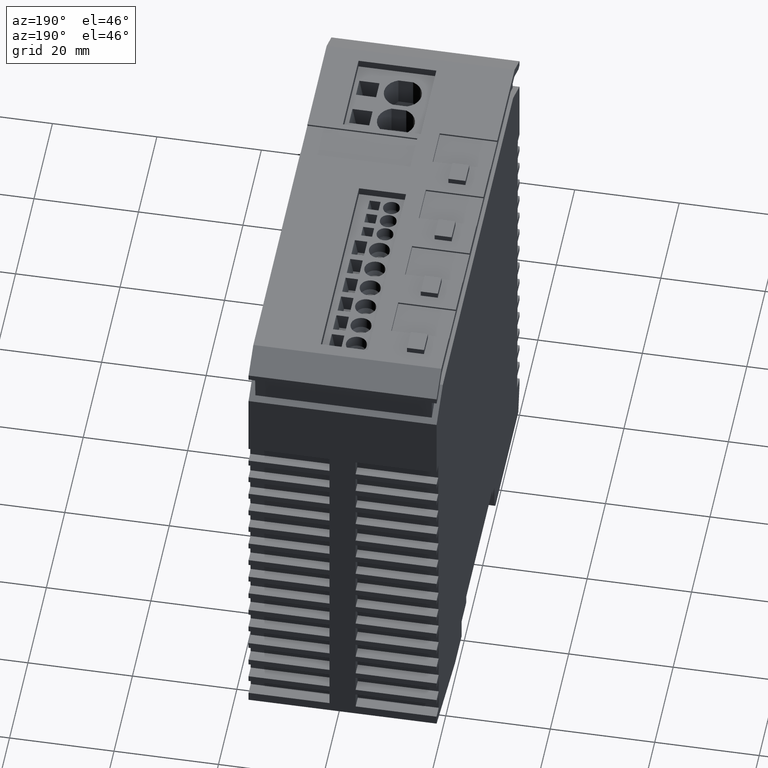
[diagram: clean part render]
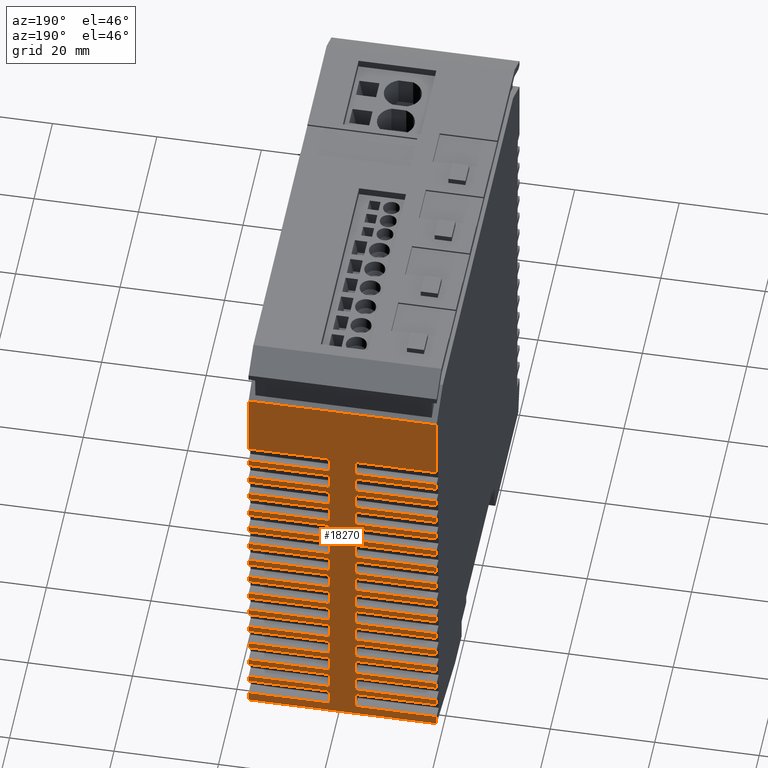
[diagram: same view with one face highlighted and labeled with its STEP entity id]
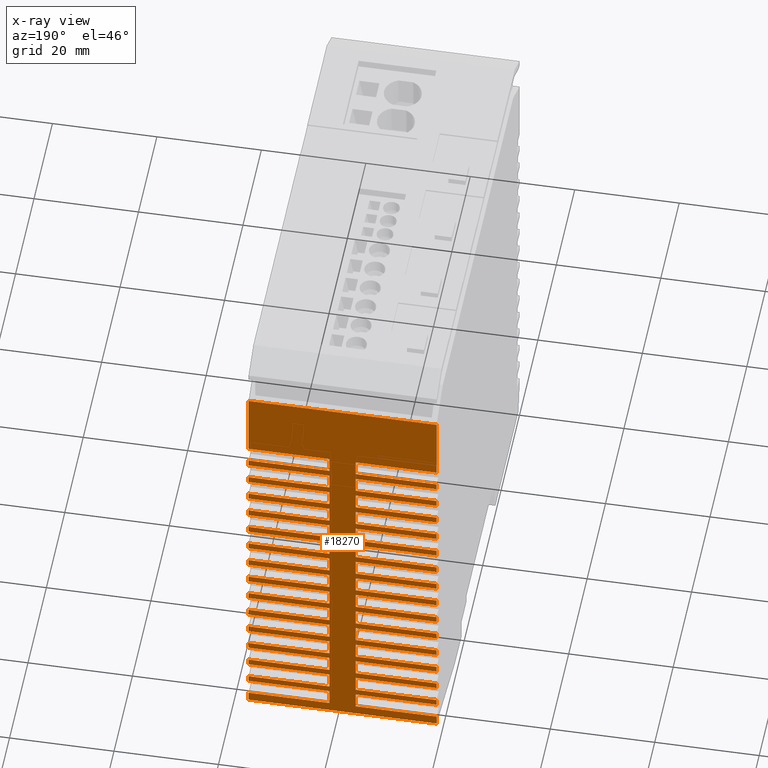
[diagram: x-ray of the same camera — body ghosted, the highlighted face saturated]
A machine part, auxiliary view. The second image highlights one B-rep face of the part: STEP entity #18270.
The next image is the same camera in x-ray: the body ghosted, the highlighted face saturated — about 0% of this face is hidden behind the body in this view.
In plain terms, the highlighted planar face has unit normal (0, 1, 0).
Its self-contained STEP definition (entity closure, byte-faithful):
#60=CARTESIAN_POINT('',(166.12362378727,69.6999999999998,
-34.799790209557));
#70=DIRECTION('',(1.10352367625519E-9,8.52434683568721E-24,1.));
#80=VECTOR('',#70,1.);
#90=LINE('',#60,#80);
#100=CARTESIAN_POINT('',(166.12362378727,69.6999999999998,
-34.799790209557));
#110=VERTEX_POINT('',#100);
#120=CARTESIAN_POINT('',(166.123623804375,69.6999999999998,
-19.299790209557));
#130=VERTEX_POINT('',#120);
#140=EDGE_CURVE('',#110,#130,#90,.T.);
#950=CARTESIAN_POINT('',(162.877748702455,69.6999999999998,
-19.2997902059751));
#960=VERTEX_POINT('',#950);
#1010=CARTESIAN_POINT('',(124.80000036879,69.6999999999998,
-19.2997901639554));
#1020=DIRECTION('',(-1.,-3.82894150652559E-24,1.10352373126048E-9));
#1030=VECTOR('',#1020,1.);
#1040=LINE('',#1010,#1030);
#1050=EDGE_CURVE('',#130,#960,#1040,.T.);
#1730=CARTESIAN_POINT('',(162.877748685351,69.6999999999998,
-34.7997902059751));
#1740=VERTEX_POINT('',#1730);
#1790=CARTESIAN_POINT('',(162.877748685351,69.6999999999998,
-34.7997902059751));
#1800=DIRECTION('',(-1.10352448830403E-9,-8.52434688499102E-24,-1.));
#1810=VECTOR('',#1800,1.);
#1820=LINE('',#1790,#1810);
#1830=EDGE_CURVE('',#960,#1740,#1820,.T.);
#2000=CARTESIAN_POINT('',(124.800000351686,69.6999999999998,
-34.7997901639554));
#2010=DIRECTION('',(-1.,-3.82894150652559E-24,1.10352373126048E-9));
#2020=VECTOR('',#2010,1.);
#2030=LINE('',#2000,#2020);
#2040=CARTESIAN_POINT('',(168.000000202668,69.6999999999998,
-34.7997902116276));
#2050=VERTEX_POINT('',#2040);
#2060=EDGE_CURVE('',#2050,#110,#2030,.T.);
#2110=CARTESIAN_POINT('',(161.621565686345,69.6999999999998,
-34.7997902045888));
#2120=VERTEX_POINT('',#2110);
#2130=EDGE_CURVE('',#1740,#2120,#2030,.T.);
#2310=CARTESIAN_POINT('',(158.379806786275,69.6999999999998,
-34.7997902010115));
#2320=VERTEX_POINT('',#2310);
#2350=CARTESIAN_POINT('',(157.119507585421,69.6999999999998,
-34.7997901996207));
#2360=VERTEX_POINT('',#2350);
#2370=EDGE_CURVE('',#2320,#2360,#2030,.T.);
#2550=CARTESIAN_POINT('',(153.8818648872,69.6999999999998,
-34.7997901960479));
#2560=VERTEX_POINT('',#2550);
#2590=CARTESIAN_POINT('',(152.617449484496,69.6999999999998,
-34.7997901946526));
#2600=VERTEX_POINT('',#2590);
#2610=EDGE_CURVE('',#2560,#2600,#2030,.T.);
#2790=CARTESIAN_POINT('',(149.383922988124,69.6999999999998,
-34.7997901910843));
#2800=VERTEX_POINT('',#2790);
#2830=CARTESIAN_POINT('',(148.115391383572,69.6999999999998,
-34.7997901896845));
#2840=VERTEX_POINT('',#2830);
#2850=EDGE_CURVE('',#2800,#2840,#2030,.T.);
#3030=CARTESIAN_POINT('',(144.885981089049,69.6999999999998,
-34.7997901861207));
#3040=VERTEX_POINT('',#3030);
#3070=CARTESIAN_POINT('',(143.613333282647,69.6999999999998,
-34.7997901847163));
#3080=VERTEX_POINT('',#3070);
#3090=EDGE_CURVE('',#3040,#3080,#2030,.T.);
#3270=CARTESIAN_POINT('',(140.388039189973,69.6999999999998,
-34.7997901811571));
#3280=VERTEX_POINT('',#3270);
#3310=CARTESIAN_POINT('',(139.111275181723,69.6999999999998,
-34.7997901797482));
#3320=VERTEX_POINT('',#3310);
#3330=EDGE_CURVE('',#3280,#3320,#2030,.T.);
#3510=CARTESIAN_POINT('',(135.890097290898,69.6999999999998,
-34.7997901761935));
#3520=VERTEX_POINT('',#3510);
#3550=CARTESIAN_POINT('',(134.608819974645,69.6999999999998,
-34.7997901747796));
#3560=VERTEX_POINT('',#3550);
#3570=EDGE_CURVE('',#3520,#3560,#2030,.T.);
#3750=CARTESIAN_POINT('',(131.392155391822,69.6999999999998,
-34.79979017123));
#3760=VERTEX_POINT('',#3750);
#3790=CARTESIAN_POINT('',(130.107158979874,69.6999999999998,
-34.7997901698119));
#3800=VERTEX_POINT('',#3790);
#3810=EDGE_CURVE('',#3760,#3800,#2030,.T.);
#3990=CARTESIAN_POINT('',(126.894213492747,69.6999999999998,
-34.7997901662664));
#4000=VERTEX_POINT('',#3990);
#4030=CARTESIAN_POINT('',(125.605100878949,69.6999999999998,
-34.7997901648438));
#4040=VERTEX_POINT('',#4030);
#4050=EDGE_CURVE('',#4000,#4040,#2030,.T.);
#4230=CARTESIAN_POINT('',(122.396271593672,69.6999999999998,
-34.7997901613028));
#4240=VERTEX_POINT('',#4230);
#4270=CARTESIAN_POINT('',(121.103042778024,69.6999999999998,
-34.7997901598757));
#4280=VERTEX_POINT('',#4270);
#4290=EDGE_CURVE('',#4240,#4280,#2030,.T.);
#4470=CARTESIAN_POINT('',(117.898329694596,69.6999999999998,
-34.7997901563392));
#4480=VERTEX_POINT('',#4470);
#4510=CARTESIAN_POINT('',(116.6009846771,69.6999999999998,
-34.7997901549076));
#4520=VERTEX_POINT('',#4510);
#4530=EDGE_CURVE('',#4480,#4520,#2030,.T.);
#4710=CARTESIAN_POINT('',(113.400387795521,69.6999999999998,
-34.7997901513756));
#4720=VERTEX_POINT('',#4710);
#4750=CARTESIAN_POINT('',(112.098926576175,69.6999999999998,
-34.7997901499394));
#4760=VERTEX_POINT('',#4750);
#4770=EDGE_CURVE('',#4720,#4760,#2030,.T.);
#4950=CARTESIAN_POINT('',(108.902445896445,69.6999999999998,
-34.799790146412));
#4960=VERTEX_POINT('',#4950);
#4990=CARTESIAN_POINT('',(107.596868475251,69.6999999999998,
-34.7997901449713));
#5000=VERTEX_POINT('',#4990);
#5010=EDGE_CURVE('',#4960,#5000,#2030,.T.);
#5190=CARTESIAN_POINT('',(104.40450399737,69.6999999999998,
-34.7997901414484));
#5200=VERTEX_POINT('',#5190);
#5230=CARTESIAN_POINT('',(103.094810374326,69.6999999999998,
-34.7997901400032));
#5240=VERTEX_POINT('',#5230);
#5250=EDGE_CURVE('',#5200,#5240,#2030,.T.);
#5430=CARTESIAN_POINT('',(99.9065620982943,69.6999999999998,
-34.7997901364849));
#5440=VERTEX_POINT('',#5430);
#5470=CARTESIAN_POINT('',(86.928203344718,69.6999999999998,
-34.7997901221629));
#5480=VERTEX_POINT('',#5470);
#5490=EDGE_CURVE('',#5440,#5480,#2030,.T.);
#10510=CARTESIAN_POINT('',(162.900000241844,69.6999999999998,
0.700209794000392));
#10520=DIRECTION('',(-3.82894151593241E-24,1.,-8.52434683146188E-24));
#10530=DIRECTION('',(-1.,-3.82894150652559E-24,1.10352373126048E-9));
#10540=AXIS2_PLACEMENT_3D('',#10510,#10520,#10530);
#10550=PLANE('',#10540);
#10560=ORIENTED_EDGE('',*,*,#5490,.T.);
#10570=CARTESIAN_POINT('',(99.9065620982943,69.6999999999998,
-34.7997901364849));
#10580=DIRECTION('',(-1.10352367625519E-9,-8.52434683568721E-24,-1.));
#10590=VECTOR('',#10580,1.);
#10600=LINE('',#10570,#10590);
#10610=CARTESIAN_POINT('',(99.9065621153989,69.6999999999998,
-19.2997901364849));
#10620=VERTEX_POINT('',#10610);
#10630=EDGE_CURVE('',#10620,#5440,#10600,.T.);
#10640=ORIENTED_EDGE('',*,*,#10630,.T.);
#10650=CARTESIAN_POINT('',(124.80000036879,69.6999999999998,
-19.2997901639554));
#10660=DIRECTION('',(-1.,-3.82894150652559E-24,1.10352373126048E-9));
#10670=VECTOR('',#10660,1.);
#10680=LINE('',#10650,#10670);
#10690=CARTESIAN_POINT('',(103.094810391431,69.6999999999998,
-19.2997901400032));
#10700=VERTEX_POINT('',#10690);
#10710=EDGE_CURVE('',#10700,#10620,#10680,.T.);
#10720=ORIENTED_EDGE('',*,*,#10710,.T.);
#10730=CARTESIAN_POINT('',(103.094810374326,69.6999999999998,
-34.7997901400032));
#10740=DIRECTION('',(1.1035238792674E-9,8.52434684185019E-24,1.));
#10750=VECTOR('',#10740,1.);
#10760=LINE('',#10730,#10750);
#10770=EDGE_CURVE('',#5240,#10700,#10760,.T.);
#10780=ORIENTED_EDGE('',*,*,#10770,.T.);
#10790=ORIENTED_EDGE('',*,*,#5250,.T.);
#10800=CARTESIAN_POINT('',(104.40450399737,69.6999999999998,
-34.7997901414484));
#10810=DIRECTION('',(-1.1035238792674E-9,-8.52434684185019E-24,-1.));
#10820=VECTOR('',#10810,1.);
#10830=LINE('',#10800,#10820);
#10840=CARTESIAN_POINT('',(104.404504014474,69.6999999999998,
-19.2997901414484));
#10850=VERTEX_POINT('',#10840);
#10860=EDGE_CURVE('',#10850,#5200,#10830,.T.);
#10870=ORIENTED_EDGE('',*,*,#10860,.T.);
#10880=CARTESIAN_POINT('',(124.80000036879,69.6999999999998,
-19.2997901639554));
#10890=DIRECTION('',(-1.,-3.82894150652559E-24,1.10352373126048E-9));
#10900=VECTOR('',#10890,1.);
#10910=LINE('',#10880,#10900);
#10920=CARTESIAN_POINT('',(107.596868492355,69.6999999999998,
-19.2997901449713));
#10930=VERTEX_POINT('',#10920);
#10940=EDGE_CURVE('',#10930,#10850,#10910,.T.);
#10950=ORIENTED_EDGE('',*,*,#10940,.T.);
#10960=CARTESIAN_POINT('',(107.596868475251,69.6999999999998,
-34.7997901449713));
#10970=DIRECTION('',(1.10352367625519E-9,8.52434683568721E-24,1.));
#10980=VECTOR('',#10970,1.);
#10990=LINE('',#10960,#10980);
#11000=EDGE_CURVE('',#5000,#10930,#10990,.T.);
#11010=ORIENTED_EDGE('',*,*,#11000,.T.);
#11020=ORIENTED_EDGE('',*,*,#5010,.T.);
#11030=CARTESIAN_POINT('',(108.902445896445,69.6999999999998,
-34.799790146412));
#11040=DIRECTION('',(-1.10352367625519E-9,-8.52434683568721E-24,-1.));
#11050=VECTOR('',#11040,1.);
#11060=LINE('',#11030,#11050);
#11070=CARTESIAN_POINT('',(108.90244591355,69.6999999999998,
-19.299790146412));
#11080=VERTEX_POINT('',#11070);
#11090=EDGE_CURVE('',#11080,#4960,#11060,.T.);
#11100=ORIENTED_EDGE('',*,*,#11090,.T.);
#11110=CARTESIAN_POINT('',(124.80000036879,69.6999999999998,
-19.2997901639554));
#11120=DIRECTION('',(-1.,-3.82894150652559E-24,1.10352373126048E-9));
#11130=VECTOR('',#11120,1.);
#11140=LINE('',#11110,#11130);
#11150=CARTESIAN_POINT('',(112.09892659328,69.6999999999998,
-19.2997901499394));
#11160=VERTEX_POINT('',#11150);
#11170=EDGE_CURVE('',#11160,#11080,#11140,.T.);
#11180=ORIENTED_EDGE('',*,*,#11170,.T.);
#11190=CARTESIAN_POINT('',(112.098926576175,69.6999999999998,
-34.7997901499394));
#11200=DIRECTION('',(1.10352367625519E-9,8.52434683568721E-24,1.));
#11210=VECTOR('',#11200,1.);
#11220=LINE('',#11190,#11210);
#11230=EDGE_CURVE('',#4760,#11160,#11220,.T.);
#11240=ORIENTED_EDGE('',*,*,#11230,.T.);
#11250=ORIENTED_EDGE('',*,*,#4770,.T.);
#11260=CARTESIAN_POINT('',(113.400387795521,69.6999999999998,
-34.7997901513756));
#11270=DIRECTION('',(-1.1035238792674E-9,-8.52434684185019E-24,-1.));
#11280=VECTOR('',#11270,1.);
#11290=LINE('',#11260,#11280);
#11300=CARTESIAN_POINT('',(113.400387812625,69.6999999999998,
-19.2997901513756));
#11310=VERTEX_POINT('',#11300);
#11320=EDGE_CURVE('',#11310,#4720,#11290,.T.);
#11330=ORIENTED_EDGE('',*,*,#11320,.T.);
#11340=CARTESIAN_POINT('',(124.80000036879,69.6999999999998,
-19.2997901639554));
#11350=DIRECTION('',(-1.,-3.82894150652559E-24,1.10352373126048E-9));
#11360=VECTOR('',#11350,1.);
#11370=LINE('',#11340,#11360);
#11380=CARTESIAN_POINT('',(116.600984694205,69.6999999999998,
-19.2997901549076));
#11390=VERTEX_POINT('',#11380);
#11400=EDGE_CURVE('',#11390,#11310,#11370,.T.);
#11410=ORIENTED_EDGE('',*,*,#11400,.T.);
#11420=CARTESIAN_POINT('',(116.6009846771,69.6999999999998,
-34.7997901549076));
#11430=DIRECTION('',(1.10352367625519E-9,8.52434683568721E-24,1.));
#11440=VECTOR('',#11430,1.);
#11450=LINE('',#11420,#11440);
#11460=EDGE_CURVE('',#4520,#11390,#11450,.T.);
#11470=ORIENTED_EDGE('',*,*,#11460,.T.);
#11480=ORIENTED_EDGE('',*,*,#4530,.T.);
#11490=CARTESIAN_POINT('',(117.898329694596,69.6999999999998,
-34.7997901563392));
#11500=DIRECTION('',(-1.10352367625519E-9,-8.52434683568721E-24,-1.));
#11510=VECTOR('',#11500,1.);
#11520=LINE('',#11490,#11510);
#11530=CARTESIAN_POINT('',(117.898329711701,69.6999999999998,
-19.2997901563392));
#11540=VERTEX_POINT('',#11530);
#11550=EDGE_CURVE('',#11540,#4480,#11520,.T.);
#11560=ORIENTED_EDGE('',*,*,#11550,.T.);
#11570=CARTESIAN_POINT('',(124.80000036879,69.6999999999998,
-19.2997901639554));
#11580=DIRECTION('',(-1.,-3.82894150652559E-24,1.10352373126048E-9));
#11590=VECTOR('',#11580,1.);
#11600=LINE('',#11570,#11590);
#11610=CARTESIAN_POINT('',(121.103042795129,69.6999999999998,
-19.2997901598757));
#11620=VERTEX_POINT('',#11610);
#11630=EDGE_CURVE('',#11620,#11540,#11600,.T.);
#11640=ORIENTED_EDGE('',*,*,#11630,.T.);
#11650=CARTESIAN_POINT('',(121.103042778024,69.6999999999998,
-34.7997901598757));
#11660=DIRECTION('',(1.10352367625519E-9,8.52434683568721E-24,1.));
#11670=VECTOR('',#11660,1.);
#11680=LINE('',#11650,#11670);
#11690=EDGE_CURVE('',#4280,#11620,#11680,.T.);
#11700=ORIENTED_EDGE('',*,*,#11690,.T.);
#11710=ORIENTED_EDGE('',*,*,#4290,.T.);
#11720=CARTESIAN_POINT('',(122.396271593672,69.6999999999998,
-34.7997901613028));
#11730=DIRECTION('',(-1.10352367625519E-9,-8.52434683568721E-24,-1.));
#11740=VECTOR('',#11730,1.);
#11750=LINE('',#11720,#11740);
#11760=CARTESIAN_POINT('',(122.396271610776,69.6999999999998,
-19.2997901613028));
#11770=VERTEX_POINT('',#11760);
#11780=EDGE_CURVE('',#11770,#4240,#11750,.T.);
#11790=ORIENTED_EDGE('',*,*,#11780,.T.);
#11800=CARTESIAN_POINT('',(124.80000036879,69.6999999999998,
-19.2997901639554));
#11810=DIRECTION('',(-1.,-3.82894150652559E-24,1.10352373126048E-9));
#11820=VECTOR('',#11810,1.);
#11830=LINE('',#11800,#11820);
#11840=CARTESIAN_POINT('',(125.605100896054,69.6999999999998,
-19.2997901648438));
#11850=VERTEX_POINT('',#11840);
#11860=EDGE_CURVE('',#11850,#11770,#11830,.T.);
#11870=ORIENTED_EDGE('',*,*,#11860,.T.);
#11880=CARTESIAN_POINT('',(125.605100878949,69.6999999999998,
-34.7997901648438));
#11890=DIRECTION('',(1.10352367625519E-9,8.52434683568721E-24,1.));
#11900=VECTOR('',#11890,1.);
#11910=LINE('',#11880,#11900);
#11920=EDGE_CURVE('',#4040,#11850,#11910,.T.);
#11930=ORIENTED_EDGE('',*,*,#11920,.T.);
#11940=ORIENTED_EDGE('',*,*,#4050,.T.);
#11950=CARTESIAN_POINT('',(126.894213492747,69.6999999999998,
-34.7997901662664));
#11960=DIRECTION('',(-1.10352367625519E-9,-8.52434683568721E-24,-1.));
#11970=VECTOR('',#11960,1.);
#11980=LINE('',#11950,#11970);
#11990=CARTESIAN_POINT('',(126.894213509852,69.6999999999998,
-19.2997901662664));
#12000=VERTEX_POINT('',#11990);
#12010=EDGE_CURVE('',#12000,#4000,#11980,.T.);
#12020=ORIENTED_EDGE('',*,*,#12010,.T.);
#12030=CARTESIAN_POINT('',(124.80000036879,69.6999999999998,
-19.2997901639554));
#12040=DIRECTION('',(-1.,-3.82894150652559E-24,1.10352373126048E-9));
#12050=VECTOR('',#12040,1.);
#12060=LINE('',#12030,#12050);
#12070=CARTESIAN_POINT('',(130.107158996978,69.6999999999998,
-19.2997901698119));
#12080=VERTEX_POINT('',#12070);
#12090=EDGE_CURVE('',#12080,#12000,#12060,.T.);
#12100=ORIENTED_EDGE('',*,*,#12090,.T.);
#12110=CARTESIAN_POINT('',(130.107158979874,69.6999999999998,
-34.7997901698119));
#12120=DIRECTION('',(1.10352367625519E-9,8.52434683568721E-24,1.));
#12130=VECTOR('',#12120,1.);
#12140=LINE('',#12110,#12130);
#12150=EDGE_CURVE('',#3800,#12080,#12140,.T.);
#12160=ORIENTED_EDGE('',*,*,#12150,.T.);
#12170=ORIENTED_EDGE('',*,*,#3810,.T.);
#12180=CARTESIAN_POINT('',(131.392155391822,69.6999999999998,
-34.79979017123));
#12190=DIRECTION('',(-1.10352327023076E-9,-8.52434683568721E-24,-1.));
#12200=VECTOR('',#12190,1.);
#12210=LINE('',#12180,#12200);
#12220=CARTESIAN_POINT('',(131.392155408927,69.6999999999998,
-19.29979017123));
#12230=VERTEX_POINT('',#12220);
#12240=EDGE_CURVE('',#12230,#3760,#12210,.T.);
#12250=ORIENTED_EDGE('',*,*,#12240,.T.);
#12260=CARTESIAN_POINT('',(124.80000036879,69.6999999999998,
-19.2997901639554));
#12270=DIRECTION('',(-1.,-3.82894150652559E-24,1.10352373126048E-9));
#12280=VECTOR('',#12270,1.);
#12290=LINE('',#12260,#12280);
#12300=CARTESIAN_POINT('',(134.60881999175,69.6999999999998,
-19.2997901747796));
#12310=VERTEX_POINT('',#12300);
#12320=EDGE_CURVE('',#12310,#12230,#12290,.T.);
#12330=ORIENTED_EDGE('',*,*,#12320,.T.);
#12340=CARTESIAN_POINT('',(134.608819974645,69.6999999999998,
-34.7997901747796));
#12350=DIRECTION('',(1.10352367625519E-9,8.52434683568721E-24,1.));
#12360=VECTOR('',#12350,1.);
#12370=LINE('',#12340,#12360);
#12380=EDGE_CURVE('',#3560,#12310,#12370,.T.);
#12390=ORIENTED_EDGE('',*,*,#12380,.T.);
#12400=ORIENTED_EDGE('',*,*,#3570,.T.);
#12410=CARTESIAN_POINT('',(135.890097290898,69.6999999999998,
-34.7997901761935));
#12420=DIRECTION('',(-1.10352408227961E-9,-8.52434684185019E-24,-1.));
#12430=VECTOR('',#12420,1.);
#12440=LINE('',#12410,#12430);
#12450=CARTESIAN_POINT('',(135.890097308003,69.6999999999998,
-19.2997901761935));
#12460=VERTEX_POINT('',#12450);
#12470=EDGE_CURVE('',#12460,#3520,#12440,.T.);
#12480=ORIENTED_EDGE('',*,*,#12470,.T.);
#12490=CARTESIAN_POINT('',(124.80000036879,69.6999999999998,
-19.2997901639554));
#12500=DIRECTION('',(-1.,-3.82894150652559E-24,1.10352373126048E-9));
#12510=VECTOR('',#12500,1.);
#12520=LINE('',#12490,#12510);
#12530=CARTESIAN_POINT('',(139.111275198827,69.6999999999998,
-19.2997901797482));
#12540=VERTEX_POINT('',#12530);
#12550=EDGE_CURVE('',#12540,#12460,#12520,.T.);
#12560=ORIENTED_EDGE('',*,*,#12550,.T.);
#12570=CARTESIAN_POINT('',(139.111275181723,69.6999999999998,
-34.7997901797482));
#12580=DIRECTION('',(1.10352367625519E-9,8.52434683568721E-24,1.));
#12590=VECTOR('',#12580,1.);
#12600=LINE('',#12570,#12590);
#12610=EDGE_CURVE('',#3320,#12540,#12600,.T.);
#12620=ORIENTED_EDGE('',*,*,#12610,.T.);
#12630=ORIENTED_EDGE('',*,*,#3330,.T.);
#12640=CARTESIAN_POINT('',(140.388039189973,69.6999999999998,
-34.7997901811571));
#12650=DIRECTION('',(-1.10352367625519E-9,-8.52434683568721E-24,-1.));
#12660=VECTOR('',#12650,1.);
#12670=LINE('',#12640,#12660);
#12680=CARTESIAN_POINT('',(140.388039207078,69.6999999999998,
-19.2997901811571));
#12690=VERTEX_POINT('',#12680);
#12700=EDGE_CURVE('',#12690,#3280,#12670,.T.);
#12710=ORIENTED_EDGE('',*,*,#12700,.T.);
#12720=CARTESIAN_POINT('',(124.80000036879,69.6999999999998,
-19.2997901639554));
#12730=DIRECTION('',(-1.,-3.82894150652559E-24,1.10352373126048E-9));
#12740=VECTOR('',#12730,1.);
#12750=LINE('',#12720,#12740);
#12760=CARTESIAN_POINT('',(143.613333299752,69.6999999999998,
-19.2997901847163));
#12770=VERTEX_POINT('',#12760);
#12780=EDGE_CURVE('',#12770,#12690,#12750,.T.);
#12790=ORIENTED_EDGE('',*,*,#12780,.T.);
#12800=CARTESIAN_POINT('',(143.613333282647,69.6999999999998,
-34.7997901847163));
#12810=DIRECTION('',(1.10352367625519E-9,8.52434683568721E-24,1.));
#12820=VECTOR('',#12810,1.);
#12830=LINE('',#12800,#12820);
#12840=EDGE_CURVE('',#3080,#12770,#12830,.T.);
#12850=ORIENTED_EDGE('',*,*,#12840,.T.);
#12860=ORIENTED_EDGE('',*,*,#3090,.T.);
#12870=CARTESIAN_POINT('',(144.885981089049,69.6999999999998,
-34.7997901861207));
#12880=DIRECTION('',(-1.10352408227961E-9,-8.52434684185019E-24,-1.));
#12890=VECTOR('',#12880,1.);
#12900=LINE('',#12870,#12890);
#12910=CARTESIAN_POINT('',(144.885981106153,69.6999999999998,
-19.2997901861207));
#12920=VERTEX_POINT('',#12910);
#12930=EDGE_CURVE('',#12920,#3040,#12900,.T.);
#12940=ORIENTED_EDGE('',*,*,#12930,.T.);
#12950=CARTESIAN_POINT('',(124.80000036879,69.6999999999998,
-19.2997901639554));
#12960=DIRECTION('',(-1.,-3.82894150652559E-24,1.10352373126048E-9));
#12970=VECTOR('',#12960,1.);
#12980=LINE('',#12950,#12970);
#12990=CARTESIAN_POINT('',(148.115391400676,69.6999999999998,
-19.2997901896845));
#13000=VERTEX_POINT('',#12990);
#13010=EDGE_CURVE('',#13000,#12920,#12980,.T.);
#13020=ORIENTED_EDGE('',*,*,#13010,.T.);
#13030=CARTESIAN_POINT('',(148.115391383572,69.6999999999998,
-34.7997901896845));
#13040=DIRECTION('',(1.10352286420634E-9,8.52434689115399E-24,1.));
#13050=VECTOR('',#13040,1.);
#13060=LINE('',#13030,#13050);
#13070=EDGE_CURVE('',#2840,#13000,#13060,.T.);
#13080=ORIENTED_EDGE('',*,*,#13070,.T.);
#13090=ORIENTED_EDGE('',*,*,#2850,.T.);
#13100=CARTESIAN_POINT('',(149.383922988124,69.6999999999998,
-34.7997901910843));
#13110=DIRECTION('',(-1.10352286420634E-9,-8.52434689115399E-24,-1.));
#13120=VECTOR('',#13110,1.);
#13130=LINE('',#13100,#13120);
#13140=CARTESIAN_POINT('',(149.383923005229,69.6999999999998,
-19.2997901910843));
#13150=VERTEX_POINT('',#13140);
#13160=EDGE_CURVE('',#13150,#2800,#13130,.T.);
#13170=ORIENTED_EDGE('',*,*,#13160,.T.);
#13180=CARTESIAN_POINT('',(124.80000036879,69.6999999999998,
-19.2997901639554));
#13190=DIRECTION('',(-1.,-3.82894150652559E-24,1.10352373126048E-9));
#13200=VECTOR('',#13190,1.);
#13210=LINE('',#13180,#13200);
#13220=CARTESIAN_POINT('',(152.617449501601,69.6999999999998,
-19.2997901946526));
#13230=VERTEX_POINT('',#13220);
#13240=EDGE_CURVE('',#13230,#13150,#13210,.T.);
#13250=ORIENTED_EDGE('',*,*,#13240,.T.);
#13260=CARTESIAN_POINT('',(152.617449484496,69.6999999999998,
-34.7997901946526));
#13270=DIRECTION('',(1.10352286420634E-9,8.52434689115399E-24,1.));
#13280=VECTOR('',#13270,1.);
#13290=LINE('',#13260,#13280);
#13300=EDGE_CURVE('',#2600,#13230,#13290,.T.);
#13310=ORIENTED_EDGE('',*,*,#13300,.T.);
#13320=ORIENTED_EDGE('',*,*,#2610,.T.);
#13330=CARTESIAN_POINT('',(153.8818648872,69.6999999999998,
-34.7997901960479));
#13340=DIRECTION('',(-1.10352286420634E-9,-8.52434689115399E-24,-1.));
#13350=VECTOR('',#13340,1.);
#13360=LINE('',#13330,#13350);
#13370=CARTESIAN_POINT('',(153.881864904304,69.6999999999998,
-19.2997901960479));
#13380=VERTEX_POINT('',#13370);
#13390=EDGE_CURVE('',#13380,#2560,#13360,.T.);
#13400=ORIENTED_EDGE('',*,*,#13390,.T.);
#13410=CARTESIAN_POINT('',(124.80000036879,69.6999999999998,
-19.2997901639554));
#13420=DIRECTION('',(-1.,-3.82894150652559E-24,1.10352373126048E-9));
#13430=VECTOR('',#13420,1.);
#13440=LINE('',#13410,#13430);
#13450=CARTESIAN_POINT('',(157.119507602525,69.6999999999998,
-19.2997901996207));
#13460=VERTEX_POINT('',#13450);
#13470=EDGE_CURVE('',#13460,#13380,#13440,.T.);
#13480=ORIENTED_EDGE('',*,*,#13470,.T.);
#13490=CARTESIAN_POINT('',(157.119507585421,69.6999999999998,
-34.7997901996207));
#13500=DIRECTION('',(1.10352367625519E-9,8.52434683568721E-24,1.));
#13510=VECTOR('',#13500,1.);
#13520=LINE('',#13490,#13510);
#13530=EDGE_CURVE('',#2360,#13460,#13520,.T.);
#13540=ORIENTED_EDGE('',*,*,#13530,.T.);
#13550=ORIENTED_EDGE('',*,*,#2370,.T.);
#13560=CARTESIAN_POINT('',(158.379806786275,69.6999999999998,
-34.7997902010115));
#13570=DIRECTION('',(-1.10352286420634E-9,-8.52434689115399E-24,-1.));
#13580=VECTOR('',#13570,1.);
#13590=LINE('',#13560,#13580);
#13600=CARTESIAN_POINT('',(158.37980680338,69.6999999999998,
-19.2997902010115));
#13610=VERTEX_POINT('',#13600);
#13620=EDGE_CURVE('',#13610,#2320,#13590,.T.);
#13630=ORIENTED_EDGE('',*,*,#13620,.T.);
#13640=CARTESIAN_POINT('',(124.80000036879,69.6999999999998,
-19.2997901639554));
#13650=DIRECTION('',(-1.,-3.82894150652559E-24,1.10352373126048E-9));
#13660=VECTOR('',#13650,1.);
#13670=LINE('',#13640,#13660);
#13680=CARTESIAN_POINT('',(161.62156570345,69.6999999999998,
-19.2997902045888));
#13690=VERTEX_POINT('',#13680);
#13700=EDGE_CURVE('',#13690,#13610,#13670,.T.);
#13710=ORIENTED_EDGE('',*,*,#13700,.T.);
#13720=CARTESIAN_POINT('',(161.621565686345,69.6999999999998,
-34.7997902045888));
#13730=DIRECTION('',(1.10352367625519E-9,8.52434683568721E-24,1.));
#13740=VECTOR('',#13730,1.);
#13750=LINE('',#13720,#13740);
#13760=EDGE_CURVE('',#2120,#13690,#13750,.T.);
#13770=ORIENTED_EDGE('',*,*,#13760,.T.);
#13780=ORIENTED_EDGE('',*,*,#2130,.T.);
#13790=ORIENTED_EDGE('',*,*,#1830,.T.);
#13800=ORIENTED_EDGE('',*,*,#1050,.T.);
#13810=ORIENTED_EDGE('',*,*,#140,.T.);
#13820=ORIENTED_EDGE('',*,*,#2060,.T.);
#13830=CARTESIAN_POINT('',(168.000000202668,69.6999999999998,
-34.7997902116276));
#13840=DIRECTION('',(1.10352367625519E-9,8.52434683568721E-24,1.));
#13850=VECTOR('',#13840,1.);
#13860=LINE('',#13830,#13850);
#13870=CARTESIAN_POINT('',(168.000000242395,69.6999999999998,
1.20020978837242));
#13880=VERTEX_POINT('',#13870);
#13890=EDGE_CURVE('',#2050,#13880,#13860,.T.);
#13900=ORIENTED_EDGE('',*,*,#13890,.F.);
#13910=CARTESIAN_POINT('',(124.800000391412,69.6999999999998,
1.20020983604464));
#13920=DIRECTION('',(1.,3.82894150652559E-24,-1.10352373126048E-9));
#13930=VECTOR('',#13920,1.);
#13940=LINE('',#13910,#13930);
#13950=CARTESIAN_POINT('',(166.123623826997,69.6999999999998,
1.20020979044305));
#13960=VERTEX_POINT('',#13950);
#13970=EDGE_CURVE('',#13960,#13880,#13940,.T.);
#13980=ORIENTED_EDGE('',*,*,#13970,.T.);
#13990=CARTESIAN_POINT('',(166.12362378727,69.6999999999998,
-34.799790209557));
#14000=DIRECTION('',(1.10352367625519E-9,8.52434683568721E-24,1.));
#14010=VECTOR('',#14000,1.);
#14020=LINE('',#13990,#14010);
#14030=CARTESIAN_POINT('',(166.123623809892,69.6999999999998,
-14.299790209557));
#14040=VERTEX_POINT('',#14030);
#14050=EDGE_CURVE('',#14040,#13960,#14020,.T.);
#14060=ORIENTED_EDGE('',*,*,#14050,.T.);
#14070=CARTESIAN_POINT('',(124.800000374308,69.6999999999998,
-14.2997901639554));
#14080=DIRECTION('',(1.,3.82894150652559E-24,-1.10352373126048E-9));
#14090=VECTOR('',#14080,1.);
#14100=LINE('',#14070,#14090);
#14110=CARTESIAN_POINT('',(162.877748707973,69.6999999999998,
-14.2997902059751));
#14120=VERTEX_POINT('',#14110);
#14130=EDGE_CURVE('',#14120,#14040,#14100,.T.);
#14140=ORIENTED_EDGE('',*,*,#14130,.T.);
#14150=CARTESIAN_POINT('',(162.877748685351,69.6999999999998,
-34.7997902059751));
#14160=DIRECTION('',(-1.10352286420634E-9,-8.52434689115399E-24,-1.));
#14170=VECTOR('',#14160,1.);
#14180=LINE('',#14150,#14170);
#14190=CARTESIAN_POINT('',(162.877748725078,69.6999999999998,
1.20020979402494));
#14200=VERTEX_POINT('',#14190);
#14210=EDGE_CURVE('',#14200,#14120,#14180,.T.);
#14220=ORIENTED_EDGE('',*,*,#14210,.T.);
#14230=CARTESIAN_POINT('',(161.621565726072,69.6999999999998,
1.20020979541117));
#14240=VERTEX_POINT('',#14230);
#14250=EDGE_CURVE('',#14240,#14200,#13940,.T.);
#14260=ORIENTED_EDGE('',*,*,#14250,.T.);
#14270=CARTESIAN_POINT('',(161.621565686345,69.6999999999998,
-34.7997902045888));
#14280=DIRECTION('',(1.10352286420634E-9,8.52434689115399E-24,1.));
#14290=VECTOR('',#14280,1.);
#14300=LINE('',#14270,#14290);
#14310=CARTESIAN_POINT('',(161.621565708968,69.6999999999998,
-14.2997902045888));
#14320=VERTEX_POINT('',#14310);
#14330=EDGE_CURVE('',#14320,#14240,#14300,.T.);
#14340=ORIENTED_EDGE('',*,*,#14330,.T.);
#14350=CARTESIAN_POINT('',(124.800000374308,69.6999999999998,
-14.2997901639554));
#14360=DIRECTION('',(1.,3.82894150652559E-24,-1.10352373126048E-9));
#14370=VECTOR('',#14360,1.);
#14380=LINE('',#14350,#14370);
#14390=CARTESIAN_POINT('',(158.379806808897,69.6999999999998,
-14.2997902010115));
#14400=VERTEX_POINT('',#14390);
#14410=EDGE_CURVE('',#14400,#14320,#14380,.T.);
#14420=ORIENTED_EDGE('',*,*,#14410,.T.);
#14430=CARTESIAN_POINT('',(158.379806786275,69.6999999999998,
-34.7997902010115));
#14440=DIRECTION('',(-1.10352367625519E-9,-8.52434683568721E-24,-1.));
#14450=VECTOR('',#14440,1.);
#14460=LINE('',#14430,#14450);
#14470=CARTESIAN_POINT('',(158.379806826002,69.6999999999998,
1.20020979898853));
#14480=VERTEX_POINT('',#14470);
#14490=EDGE_CURVE('',#14480,#14400,#14460,.T.);
#14500=ORIENTED_EDGE('',*,*,#14490,.T.);
#14510=CARTESIAN_POINT('',(157.119507625148,69.6999999999998,
1.2002098003793));
#14520=VERTEX_POINT('',#14510);
#14530=EDGE_CURVE('',#14520,#14480,#13940,.T.);
#14540=ORIENTED_EDGE('',*,*,#14530,.T.);
#14550=CARTESIAN_POINT('',(157.119507585421,69.6999999999998,
-34.7997901996207));
#14560=DIRECTION('',(1.10352286420634E-9,8.52434689115399E-24,1.));
#14570=VECTOR('',#14560,1.);
#14580=LINE('',#14550,#14570);
#14590=CARTESIAN_POINT('',(157.119507608043,69.6999999999998,
-14.2997901996207));
#14600=VERTEX_POINT('',#14590);
#14610=EDGE_CURVE('',#14600,#14520,#14580,.T.);
#14620=ORIENTED_EDGE('',*,*,#14610,.T.);
#14630=CARTESIAN_POINT('',(124.800000374308,69.6999999999998,
-14.2997901639554));
#14640=DIRECTION('',(1.,3.82894150652559E-24,-1.10352373126048E-9));
#14650=VECTOR('',#14640,1.);
#14660=LINE('',#14630,#14650);
#14670=CARTESIAN_POINT('',(153.881864909822,69.6999999999998,
-14.2997901960479));
#14680=VERTEX_POINT('',#14670);
#14690=EDGE_CURVE('',#14680,#14600,#14660,.T.);
#14700=ORIENTED_EDGE('',*,*,#14690,.T.);
#14710=CARTESIAN_POINT('',(153.8818648872,69.6999999999998,
-34.7997901960479));
#14720=DIRECTION('',(-1.10352286420634E-9,-8.52434689115399E-24,-1.));
#14730=VECTOR('',#14720,1.);
#14740=LINE('',#14710,#14730);
#14750=CARTESIAN_POINT('',(153.881864926927,69.6999999999998,
1.20020980395212));
#14760=VERTEX_POINT('',#14750);
#14770=EDGE_CURVE('',#14760,#14680,#14740,.T.);
#14780=ORIENTED_EDGE('',*,*,#14770,.T.);
#14790=CARTESIAN_POINT('',(152.617449524223,69.6999999999998,
1.20020980534743));
#14800=VERTEX_POINT('',#14790);
#14810=EDGE_CURVE('',#14800,#14760,#13940,.T.);
#14820=ORIENTED_EDGE('',*,*,#14810,.T.);
#14830=CARTESIAN_POINT('',(152.617449484496,69.6999999999998,
-34.7997901946526));
#14840=DIRECTION('',(1.1035220521575E-9,8.52434688499102E-24,1.));
#14850=VECTOR('',#14840,1.);
#14860=LINE('',#14830,#14850);
#14870=CARTESIAN_POINT('',(152.617449507118,69.6999999999998,
-14.2997901946526));
#14880=VERTEX_POINT('',#14870);
#14890=EDGE_CURVE('',#14880,#14800,#14860,.T.);
#14900=ORIENTED_EDGE('',*,*,#14890,.T.);
#14910=CARTESIAN_POINT('',(124.800000374308,69.6999999999998,
-14.2997901639554));
#14920=DIRECTION('',(1.,3.82894150652559E-24,-1.10352373126048E-9));
#14930=VECTOR('',#14920,1.);
#14940=LINE('',#14910,#14930);
#14950=CARTESIAN_POINT('',(149.383923010747,69.6999999999998,
-14.2997901910843));
#14960=VERTEX_POINT('',#14950);
#14970=EDGE_CURVE('',#14960,#14880,#14940,.T.);
#14980=ORIENTED_EDGE('',*,*,#14970,.T.);
#14990=CARTESIAN_POINT('',(149.383922988124,69.6999999999998,
-34.7997901910843));
#15000=DIRECTION('',(-1.10352367625519E-9,-8.52434683568721E-24,-1.));
#15010=VECTOR('',#15000,1.);
#15020=LINE('',#14990,#15010);
#15030=CARTESIAN_POINT('',(149.383923027851,69.6999999999998,
1.2002098089157));
#15040=VERTEX_POINT('',#15030);
#15050=EDGE_CURVE('',#15040,#14960,#15020,.T.);
#15060=ORIENTED_EDGE('',*,*,#15050,.T.);
#15070=CARTESIAN_POINT('',(148.115391423299,69.6999999999998,
1.20020981031555));
#15080=VERTEX_POINT('',#15070);
#15090=EDGE_CURVE('',#15080,#15040,#13940,.T.);
#15100=ORIENTED_EDGE('',*,*,#15090,.T.);
#15110=CARTESIAN_POINT('',(148.115391383572,69.6999999999998,
-34.7997901896845));
#15120=DIRECTION('',(1.10352367625519E-9,8.52434683568721E-24,1.));
#15130=VECTOR('',#15120,1.);
#15140=LINE('',#15110,#15130);
#15150=CARTESIAN_POINT('',(148.115391406194,69.6999999999998,
-14.2997901896844));
#15160=VERTEX_POINT('',#15150);
#15170=EDGE_CURVE('',#15160,#15080,#15140,.T.);
#15180=ORIENTED_EDGE('',*,*,#15170,.T.);
#15190=CARTESIAN_POINT('',(124.800000374308,69.6999999999998,
-14.2997901639554));
#15200=DIRECTION('',(1.,3.82894150652559E-24,-1.10352373126048E-9));
#15210=VECTOR('',#15200,1.);
#15220=LINE('',#15190,#15210);
#15230=CARTESIAN_POINT('',(144.885981111671,69.6999999999998,
-14.2997901861207));
#15240=VERTEX_POINT('',#15230);
#15250=EDGE_CURVE('',#15240,#15160,#15220,.T.);
#15260=ORIENTED_EDGE('',*,*,#15250,.T.);
#15270=CARTESIAN_POINT('',(144.885981089049,69.6999999999998,
-34.7997901861207));
#15280=DIRECTION('',(-1.10352327023076E-9,-8.52434683568721E-24,-1.));
#15290=VECTOR('',#15280,1.);
#15300=LINE('',#15270,#15290);
#15310=CARTESIAN_POINT('',(144.885981128776,69.6999999999998,
1.20020981387929));
#15320=VERTEX_POINT('',#15310);
#15330=EDGE_CURVE('',#15320,#15240,#15300,.T.);
#15340=ORIENTED_EDGE('',*,*,#15330,.T.);
#15350=CARTESIAN_POINT('',(143.613333322374,69.6999999999998,
1.20020981528368));
#15360=VERTEX_POINT('',#15350);
#15370=EDGE_CURVE('',#15360,#15320,#13940,.T.);
#15380=ORIENTED_EDGE('',*,*,#15370,.T.);
#15390=CARTESIAN_POINT('',(143.613333282647,69.6999999999998,
-34.7997901847163));
#15400=DIRECTION('',(1.10352286420634E-9,8.52434689115399E-24,1.));
#15410=VECTOR('',#15400,1.);
#15420=LINE('',#15390,#15410);
#15430=CARTESIAN_POINT('',(143.613333305269,69.6999999999998,
-14.2997901847163));
#15440=VERTEX_POINT('',#15430);
#15450=EDGE_CURVE('',#15440,#15360,#15420,.T.);
#15460=ORIENTED_EDGE('',*,*,#15450,.T.);
#15470=CARTESIAN_POINT('',(124.800000374308,69.6999999999998,
-14.2997901639554));
#15480=DIRECTION('',(1.,3.82894150652559E-24,-1.10352373126048E-9));
#15490=VECTOR('',#15480,1.);
#15500=LINE('',#15470,#15490);
#15510=CARTESIAN_POINT('',(140.388039212596,69.6999999999998,
-14.2997901811571));
#15520=VERTEX_POINT('',#15510);
#15530=EDGE_CURVE('',#15520,#15440,#15500,.T.);
#15540=ORIENTED_EDGE('',*,*,#15530,.T.);
#15550=CARTESIAN_POINT('',(140.388039189973,69.6999999999998,
-34.7997901811571));
#15560=DIRECTION('',(-1.10352245818192E-9,-8.52434688499102E-24,-1.));
#15570=VECTOR('',#15560,1.);
#15580=LINE('',#15550,#15570);
#15590=CARTESIAN_POINT('',(140.3880392297,69.6999999999998,
1.20020981884287));
#15600=VERTEX_POINT('',#15590);
#15610=EDGE_CURVE('',#15600,#15520,#15580,.T.);
#15620=ORIENTED_EDGE('',*,*,#15610,.T.);
#15630=CARTESIAN_POINT('',(139.111275221449,69.6999999999998,
1.20020982025181));
#15640=VERTEX_POINT('',#15630);
#15650=EDGE_CURVE('',#15640,#15600,#13940,.T.);
#15660=ORIENTED_EDGE('',*,*,#15650,.T.);
#15670=CARTESIAN_POINT('',(139.111275181723,69.6999999999998,
-34.7997901797482));
#15680=DIRECTION('',(1.10352327023076E-9,8.52434683568721E-24,1.));
#15690=VECTOR('',#15680,1.);
#15700=LINE('',#15670,#15690);
#15710=CARTESIAN_POINT('',(139.111275204345,69.6999999999998,
-14.2997901797482));
#15720=VERTEX_POINT('',#15710);
#15730=EDGE_CURVE('',#15720,#15640,#15700,.T.);
#15740=ORIENTED_EDGE('',*,*,#15730,.T.);
#15750=CARTESIAN_POINT('',(124.800000374308,69.6999999999998,
-14.2997901639554));
#15760=DIRECTION('',(1.,3.82894150652559E-24,-1.10352373126048E-9));
#15770=VECTOR('',#15760,1.);
#15780=LINE('',#15750,#15770);
#15790=CARTESIAN_POINT('',(135.89009731352,69.6999999999998,
-14.2997901761935));
#15800=VERTEX_POINT('',#15790);
#15810=EDGE_CURVE('',#15800,#15720,#15780,.T.);
#15820=ORIENTED_EDGE('',*,*,#15810,.T.);
#15830=CARTESIAN_POINT('',(135.890097290898,69.6999999999998,
-34.7997901761935));
#15840=DIRECTION('',(-1.10352286420634E-9,-8.52434689115399E-24,-1.));
#15850=VECTOR('',#15840,1.);
#15860=LINE('',#15830,#15850);
#15870=CARTESIAN_POINT('',(135.890097330625,69.6999999999998,
1.20020982380646));
#15880=VERTEX_POINT('',#15870);
#15890=EDGE_CURVE('',#15880,#15800,#15860,.T.);
#15900=ORIENTED_EDGE('',*,*,#15890,.T.);
#15910=CARTESIAN_POINT('',(134.608820014372,69.6999999999998,
1.20020982522038));
#15920=VERTEX_POINT('',#15910);
#15930=EDGE_CURVE('',#15920,#15880,#13940,.T.);
#15940=ORIENTED_EDGE('',*,*,#15930,.T.);
#15950=CARTESIAN_POINT('',(134.608819974645,69.6999999999998,
-34.7997901747796));
#15960=DIRECTION('',(1.10352286420634E-9,8.52434689115399E-24,1.));
#15970=VECTOR('',#15960,1.);
#15980=LINE('',#15950,#15970);
#15990=CARTESIAN_POINT('',(134.608819997267,69.6999999999998,
-14.2997901747796));
#16000=VERTEX_POINT('',#15990);
#16010=EDGE_CURVE('',#16000,#15920,#15980,.T.);
#16020=ORIENTED_EDGE('',*,*,#16010,.T.);
#16030=CARTESIAN_POINT('',(124.800000374308,69.6999999999998,
-14.2997901639554));
#16040=DIRECTION('',(1.,3.82894150652559E-24,-1.10352373126048E-9));
#16050=VECTOR('',#16040,1.);
#16060=LINE('',#16030,#16050);
#16070=CARTESIAN_POINT('',(131.392155414445,69.6999999999998,
-14.29979017123));
#16080=VERTEX_POINT('',#16070);
#16090=EDGE_CURVE('',#16080,#16000,#16060,.T.);
#16100=ORIENTED_EDGE('',*,*,#16090,.T.);
#16110=CARTESIAN_POINT('',(131.392155391822,69.6999999999998,
-34.79979017123));
#16120=DIRECTION('',(-1.10352286420634E-9,-8.52434689115399E-24,-1.));
#16130=VECTOR('',#16120,1.);
#16140=LINE('',#16110,#16130);
#16150=CARTESIAN_POINT('',(131.392155431549,69.6999999999998,
1.20020982877004));
#16160=VERTEX_POINT('',#16150);
#16170=EDGE_CURVE('',#16160,#16080,#16140,.T.);
#16180=ORIENTED_EDGE('',*,*,#16170,.T.);
#16190=CARTESIAN_POINT('',(130.1071590196,69.6999999999998,
1.20020983018807));
#16200=VERTEX_POINT('',#16190);
#16210=EDGE_CURVE('',#16200,#16160,#13940,.T.);
#16220=ORIENTED_EDGE('',*,*,#16210,.T.);
#16230=CARTESIAN_POINT('',(130.107158979874,69.6999999999998,
-34.7997901698119));
#16240=DIRECTION('',(1.10352245818192E-9,8.52434688499102E-24,1.));
#16250=VECTOR('',#16240,1.);
#16260=LINE('',#16230,#16250);
#16270=CARTESIAN_POINT('',(130.107159002496,69.6999999999998,
-14.2997901698119));
#16280=VERTEX_POINT('',#16270);
#16290=EDGE_CURVE('',#16280,#16200,#16260,.T.);
#16300=ORIENTED_EDGE('',*,*,#16290,.T.);
#16310=CARTESIAN_POINT('',(124.800000374308,69.6999999999998,
-14.2997901639554));
#16320=DIRECTION('',(1.,3.82894150652559E-24,-1.10352373126048E-9));
#16330=VECTOR('',#16320,1.);
#16340=LINE('',#16310,#16330);
#16350=CARTESIAN_POINT('',(126.894213515369,69.6999999999998,
-14.2997901662664));
#16360=VERTEX_POINT('',#16350);
#16370=EDGE_CURVE('',#16360,#16280,#16340,.T.);
#16380=ORIENTED_EDGE('',*,*,#16370,.T.);
#16390=CARTESIAN_POINT('',(126.894213492747,69.6999999999998,
-34.7997901662664));
#16400=DIRECTION('',(-1.10352286420634E-9,-8.52434689115399E-24,-1.));
#16410=VECTOR('',#16400,1.);
#16420=LINE('',#16390,#16410);
#16430=CARTESIAN_POINT('',(126.894213532474,69.6999999999998,
1.20020983373363));
#16440=VERTEX_POINT('',#16430);
#16450=EDGE_CURVE('',#16440,#16360,#16420,.T.);
#16460=ORIENTED_EDGE('',*,*,#16450,.T.);
#16470=CARTESIAN_POINT('',(125.605100918676,69.6999999999998,
1.20020983515619));
#16480=VERTEX_POINT('',#16470);
#16490=EDGE_CURVE('',#16480,#16440,#13940,.T.);
#16500=ORIENTED_EDGE('',*,*,#16490,.T.);
#16510=CARTESIAN_POINT('',(125.605100878949,69.6999999999998,
-34.7997901648438));
#16520=DIRECTION('',(1.10352286420634E-9,8.52434689115399E-24,1.));
#16530=VECTOR('',#16520,1.);
#16540=LINE('',#16510,#16530);
#16550=CARTESIAN_POINT('',(125.605100901571,69.6999999999998,
-14.2997901648438));
#16560=VERTEX_POINT('',#16550);
#16570=EDGE_CURVE('',#16560,#16480,#16540,.T.);
#16580=ORIENTED_EDGE('',*,*,#16570,.T.);
#16590=CARTESIAN_POINT('',(124.800000374308,69.6999999999998,
-14.2997901639554));
#16600=DIRECTION('',(1.,3.82894150652559E-24,-1.10352373126048E-9));
#16610=VECTOR('',#16600,1.);
#16620=LINE('',#16590,#16610);
#16630=CARTESIAN_POINT('',(122.396271616294,69.6999999999998,
-14.2997901613028));
#16640=VERTEX_POINT('',#16630);
#16650=EDGE_CURVE('',#16640,#16560,#16620,.T.);
#16660=ORIENTED_EDGE('',*,*,#16650,.T.);
#16670=CARTESIAN_POINT('',(122.396271593672,69.6999999999998,
-34.7997901613028));
#16680=DIRECTION('',(-1.10352327023076E-9,-8.52434683568721E-24,-1.));
#16690=VECTOR('',#16680,1.);
#16700=LINE('',#16670,#16690);
#16710=CARTESIAN_POINT('',(122.396271633398,69.6999999999998,
1.20020983869722));
#16720=VERTEX_POINT('',#16710);
#16730=EDGE_CURVE('',#16720,#16640,#16700,.T.);
#16740=ORIENTED_EDGE('',*,*,#16730,.T.);
#16750=CARTESIAN_POINT('',(121.103042817751,69.6999999999998,
1.20020984012432));
#16760=VERTEX_POINT('',#16750);
#16770=EDGE_CURVE('',#16760,#16720,#13940,.T.);
#16780=ORIENTED_EDGE('',*,*,#16770,.T.);
#16790=CARTESIAN_POINT('',(121.103042778024,69.6999999999998,
-34.7997901598757));
#16800=DIRECTION('',(1.10352286420634E-9,8.52434689115399E-24,1.));
#16810=VECTOR('',#16800,1.);
#16820=LINE('',#16790,#16810);
#16830=CARTESIAN_POINT('',(121.103042800647,69.6999999999998,
-14.2997901598757));
#16840=VERTEX_POINT('',#16830);
#16850=EDGE_CURVE('',#16840,#16760,#16820,.T.);
#16860=ORIENTED_EDGE('',*,*,#16850,.T.);
#16870=CARTESIAN_POINT('',(124.800000374308,69.6999999999998,
-14.2997901639554));
#16880=DIRECTION('',(1.,3.82894150652559E-24,-1.10352373126048E-9));
#16890=VECTOR('',#16880,1.);
#16900=LINE('',#16870,#16890);
#16910=CARTESIAN_POINT('',(117.898329717218,69.6999999999998,
-14.2997901563392));
#16920=VERTEX_POINT('',#16910);
#16930=EDGE_CURVE('',#16920,#16840,#16900,.T.);
#16940=ORIENTED_EDGE('',*,*,#16930,.T.);
#16950=CARTESIAN_POINT('',(117.898329694596,69.6999999999998,
-34.7997901563392));
#16960=DIRECTION('',(-1.10352286420634E-9,-8.52434689115399E-24,-1.));
#16970=VECTOR('',#16960,1.);
#16980=LINE('',#16950,#16970);
#16990=CARTESIAN_POINT('',(117.898329734323,69.6999999999998,
1.2002098436608));
#17000=VERTEX_POINT('',#16990);
#17010=EDGE_CURVE('',#17000,#16920,#16980,.T.);
#17020=ORIENTED_EDGE('',*,*,#17010,.T.);
#17030=CARTESIAN_POINT('',(116.600984716827,69.6999999999998,
1.20020984509245));
#17040=VERTEX_POINT('',#17030);
#17050=EDGE_CURVE('',#17040,#17000,#13940,.T.);
#17060=ORIENTED_EDGE('',*,*,#17050,.T.);
#17070=CARTESIAN_POINT('',(116.6009846771,69.6999999999998,
-34.7997901549076));
#17080=DIRECTION('',(1.10352245818192E-9,8.52434688499102E-24,1.));
#17090=VECTOR('',#17080,1.);
#17100=LINE('',#17070,#17090);
#17110=CARTESIAN_POINT('',(116.600984699722,69.6999999999998,
-14.2997901549076));
#17120=VERTEX_POINT('',#17110);
#17130=EDGE_CURVE('',#17120,#17040,#17100,.T.);
#17140=ORIENTED_EDGE('',*,*,#17130,.T.);
#17150=CARTESIAN_POINT('',(124.800000374308,69.6999999999998,
-14.2997901639554));
#17160=DIRECTION('',(1.,3.82894150652559E-24,-1.10352373126048E-9));
#17170=VECTOR('',#17160,1.);
#17180=LINE('',#17150,#17170);
#17190=CARTESIAN_POINT('',(113.400387818143,69.6999999999998,
-14.2997901513756));
#17200=VERTEX_POINT('',#17190);
#17210=EDGE_CURVE('',#17200,#17120,#17180,.T.);
#17220=ORIENTED_EDGE('',*,*,#17210,.T.);
#17230=CARTESIAN_POINT('',(113.400387795521,69.6999999999998,
-34.7997901513756));
#17240=DIRECTION('',(-1.10352266119413E-9,-8.52434689115399E-24,-1.));
#17250=VECTOR('',#17240,1.);
#17260=LINE('',#17230,#17250);
#17270=CARTESIAN_POINT('',(113.400387835248,69.6999999999998,
1.20020984862439));
#17280=VERTEX_POINT('',#17270);
#17290=EDGE_CURVE('',#17280,#17200,#17260,.T.);
#17300=ORIENTED_EDGE('',*,*,#17290,.T.);
#17310=CARTESIAN_POINT('',(112.098926615902,69.6999999999998,
1.20020985006058));
#17320=VERTEX_POINT('',#17310);
#17330=EDGE_CURVE('',#17320,#17280,#13940,.T.);
#17340=ORIENTED_EDGE('',*,*,#17330,.T.);
#17350=CARTESIAN_POINT('',(112.098926576175,69.6999999999998,
-34.7997901499394));
#17360=DIRECTION('',(1.10352286420634E-9,8.52434689115399E-24,1.));
#17370=VECTOR('',#17360,1.);
#17380=LINE('',#17350,#17370);
#17390=CARTESIAN_POINT('',(112.098926598798,69.6999999999998,
-14.2997901499394));
#17400=VERTEX_POINT('',#17390);
#17410=EDGE_CURVE('',#17400,#17320,#17380,.T.);
#17420=ORIENTED_EDGE('',*,*,#17410,.T.);
#17430=CARTESIAN_POINT('',(124.800000374308,69.6999999999998,
-14.2997901639554));
#17440=DIRECTION('',(1.,3.82894150652559E-24,-1.10352373126048E-9));
#17450=VECTOR('',#17440,1.);
#17460=LINE('',#17430,#17450);
#17470=CARTESIAN_POINT('',(108.902445919067,69.6999999999998,
-14.299790146412));
#17480=VERTEX_POINT('',#17470);
#17490=EDGE_CURVE('',#17480,#17400,#17460,.T.);
#17500=ORIENTED_EDGE('',*,*,#17490,.T.);
#17510=CARTESIAN_POINT('',(108.902445896445,69.6999999999998,
-34.799790146412));
#17520=DIRECTION('',(-1.10352286420634E-9,-8.52434689115399E-24,-1.));
#17530=VECTOR('',#17520,1.);
#17540=LINE('',#17510,#17530);
#17550=CARTESIAN_POINT('',(108.902445936172,69.6999999999998,
1.20020985358797));
#17560=VERTEX_POINT('',#17550);
#17570=EDGE_CURVE('',#17560,#17480,#17540,.T.);
#17580=ORIENTED_EDGE('',*,*,#17570,.T.);
#17590=CARTESIAN_POINT('',(107.596868514978,69.6999999999998,
1.20020985502871));
#17600=VERTEX_POINT('',#17590);
#17610=EDGE_CURVE('',#17600,#17560,#13940,.T.);
#17620=ORIENTED_EDGE('',*,*,#17610,.T.);
#17630=CARTESIAN_POINT('',(107.596868475251,69.6999999999998,
-34.7997901449713));
#17640=DIRECTION('',(1.10352266119413E-9,8.52434689115399E-24,1.));
#17650=VECTOR('',#17640,1.);
#17660=LINE('',#17630,#17650);
#17670=CARTESIAN_POINT('',(107.596868497873,69.6999999999998,
-14.2997901449713));
#17680=VERTEX_POINT('',#17670);
#17690=EDGE_CURVE('',#17680,#17600,#17660,.T.);
#17700=ORIENTED_EDGE('',*,*,#17690,.T.);
#17710=CARTESIAN_POINT('',(124.800000374308,69.6999999999998,
-14.2997901639554));
#17720=DIRECTION('',(1.,3.82894150652559E-24,-1.10352373126048E-9));
#17730=VECTOR('',#17720,1.);
#17740=LINE('',#17710,#17730);
#17750=CARTESIAN_POINT('',(104.404504019992,69.6999999999998,
-14.2997901414484));
#17760=VERTEX_POINT('',#17750);
#17770=EDGE_CURVE('',#17760,#17680,#17740,.T.);
#17780=ORIENTED_EDGE('',*,*,#17770,.T.);
#17790=CARTESIAN_POINT('',(104.40450399737,69.6999999999998,
-34.7997901414484));
#17800=DIRECTION('',(-1.10352286420634E-9,-8.52434689115399E-24,-1.));
#17810=VECTOR('',#17800,1.);
#17820=LINE('',#17790,#17810);
#17830=CARTESIAN_POINT('',(104.404504037097,69.6999999999998,
1.20020985855156));
#17840=VERTEX_POINT('',#17830);
#17850=EDGE_CURVE('',#17840,#17760,#17820,.T.);
#17860=ORIENTED_EDGE('',*,*,#17850,.T.);
#17870=CARTESIAN_POINT('',(103.094810414053,69.6999999999998,
1.20020985999684));
#17880=VERTEX_POINT('',#17870);
#17890=EDGE_CURVE('',#17880,#17840,#13940,.T.);
#17900=ORIENTED_EDGE('',*,*,#17890,.T.);
#17910=CARTESIAN_POINT('',(103.094810374326,69.6999999999998,
-34.7997901400032));
#17920=DIRECTION('',(1.10352286420634E-9,8.52434689115399E-24,1.));
#17930=VECTOR('',#17920,1.);
#17940=LINE('',#17910,#17930);
#17950=CARTESIAN_POINT('',(103.094810396948,69.6999999999998,
-14.2997901400032));
#17960=VERTEX_POINT('',#17950);
#17970=EDGE_CURVE('',#17960,#17880,#17940,.T.);
#17980=ORIENTED_EDGE('',*,*,#17970,.T.);
#17990=CARTESIAN_POINT('',(124.800000374308,69.6999999999998,
-14.2997901639554));
#18000=DIRECTION('',(1.,3.82894150652559E-24,-1.10352373126048E-9));
#18010=VECTOR('',#18000,1.);
#18020=LINE('',#17990,#18010);
#18030=CARTESIAN_POINT('',(99.9065621209165,69.6999999999998,
-14.2997901364849));
#18040=VERTEX_POINT('',#18030);
#18050=EDGE_CURVE('',#18040,#17960,#18020,.T.);
#18060=ORIENTED_EDGE('',*,*,#18050,.T.);
#18070=CARTESIAN_POINT('',(99.9065620982943,69.6999999999998,
-34.7997901364849));
#18080=DIRECTION('',(-1.10352367625519E-9,-8.52434683568721E-24,-1.));
#18090=VECTOR('',#18080,1.);
#18100=LINE('',#18070,#18090);
#18110=CARTESIAN_POINT('',(99.9065621380211,69.6999999999998,
1.20020986351515));
#18120=VERTEX_POINT('',#18110);
#18130=EDGE_CURVE('',#18120,#18040,#18100,.T.);
#18140=ORIENTED_EDGE('',*,*,#18130,.T.);
#18150=CARTESIAN_POINT('',(86.9282033844448,69.6999999999998,
1.20020987783707));
#18160=VERTEX_POINT('',#18150);
#18170=EDGE_CURVE('',#18160,#18120,#13940,.T.);
#18180=ORIENTED_EDGE('',*,*,#18170,.T.);
#18190=CARTESIAN_POINT('',(86.928203344718,69.6999999999998,
-34.7997901221629));
#18200=DIRECTION('',(-1.10352367625519E-9,-8.52434683568721E-24,-1.));
#18210=VECTOR('',#18200,1.);
#18220=LINE('',#18190,#18210);
#18230=EDGE_CURVE('',#18160,#5480,#18220,.T.);
#18240=ORIENTED_EDGE('',*,*,#18230,.F.);
#18250=EDGE_LOOP('',(#18240,#18180,#18140,#18060,#17980,#17900,#17860,
#17780,#17700,#17620,#17580,#17500,#17420,#17340,#17300,#17220,#17140,
#17060,#17020,#16940,#16860,#16780,#16740,#16660,#16580,#16500,#16460,
#16380,#16300,#16220,#16180,#16100,#16020,#15940,#15900,#15820,#15740,
#15660,#15620,#15540,#15460,#15380,#15340,#15260,#15180,#15100,#15060,
#14980,#14900,#14820,#14780,#14700,#14620,#14540,#14500,#14420,#14340,
#14260,#14220,#14140,#14060,#13980,#13900,#13820,#13810,#13800,#13790,
#13780,#13770,#13710,#13630,#13550,#13540,#13480,#13400,#13320,#13310,
#13250,#13170,#13090,#13080,#13020,#12940,#12860,#12850,#12790,#12710,
#12630,#12620,#12560,#12480,#12400,#12390,#12330,#12250,#12170,#12160,
#12100,#12020,#11940,#11930,#11870,#11790,#11710,#11700,#11640,#11560,
#11480,#11470,#11410,#11330,#11250,#11240,#11180,#11100,#11020,#11010,
#10950,#10870,#10790,#10780,#10720,#10640,#10560));
#18260=FACE_OUTER_BOUND('',#18250,.T.);
#18270=ADVANCED_FACE('',(#18260),#10550,.T.);